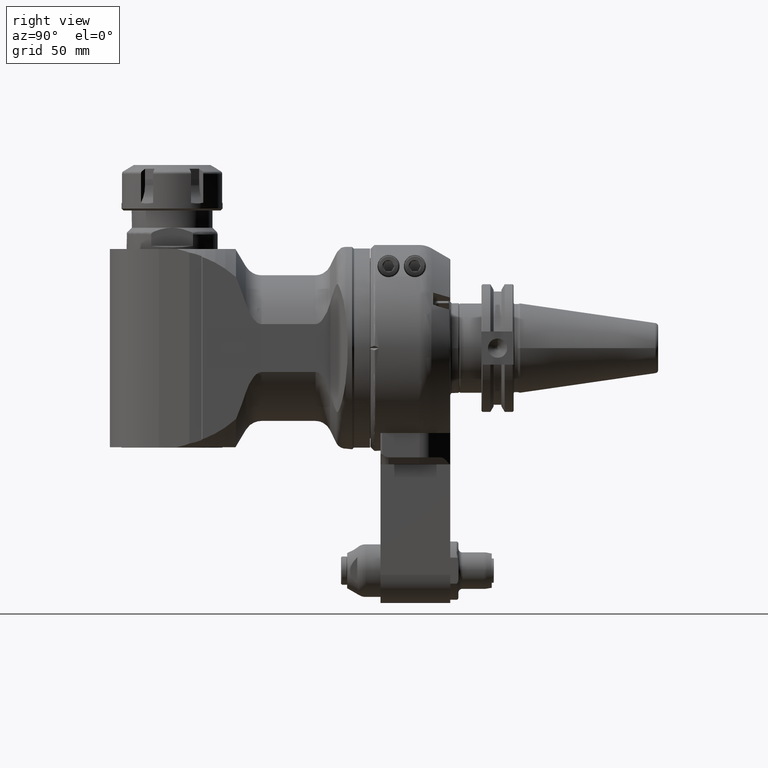
[diagram: clean part render]
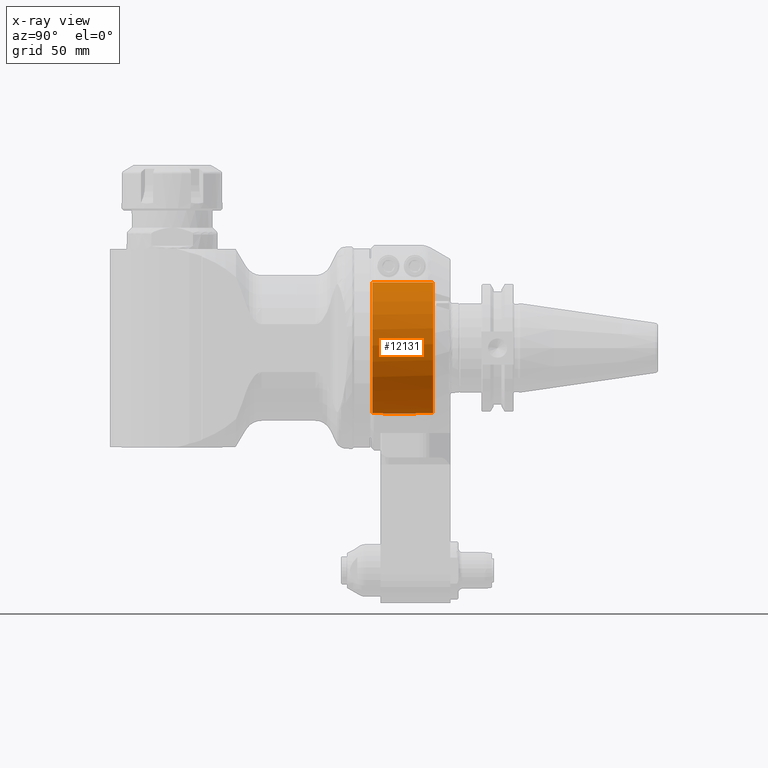
[diagram: x-ray — body ghosted, one internal face saturated and labeled with its STEP entity id]
A machine part, right view, then the same camera in x-ray: the body is ghosted and one INTERNAL B-rep face — a face not visible from any outside direction — is saturated and labeled: STEP entity #12131.
In plain terms, the highlighted cylindrical surface (partial cylindrical patch) has radius 32.5 mm, axis along (0, -1, 0).
Its self-contained STEP definition (entity closure, byte-faithful):
#1218=LINE('',#25432,#2106);
#1219=LINE('',#25435,#2107);
#1220=LINE('',#25439,#2108);
#1221=LINE('',#25443,#2109);
#2106=VECTOR('',#15419,8.5);
#2107=VECTOR('',#15422,8.5);
#2108=VECTOR('',#15425,30.);
#2109=VECTOR('',#15428,29.99999999998);
#2579=CYLINDRICAL_SURFACE('',#13107,32.5);
#2969=FACE_OUTER_BOUND('',#3683,.T.);
#3683=EDGE_LOOP('',(#9747,#9748,#9749,#9750,#9751,#9752,#9753,#9754));
#4330=CIRCLE('',#13058,32.5);
#4352=CIRCLE('',#13108,32.5);
#4353=CIRCLE('',#13109,32.5);
#4354=CIRCLE('',#13110,32.5);
#5383=VERTEX_POINT('',#24582);
#5384=VERTEX_POINT('',#24584);
#5422=VERTEX_POINT('',#25430);
#5423=VERTEX_POINT('',#25434);
#5424=VERTEX_POINT('',#25436);
#5425=VERTEX_POINT('',#25438);
#5426=VERTEX_POINT('',#25440);
#5427=VERTEX_POINT('',#25442);
#6891=EDGE_CURVE('',#5384,#5383,#4330,.T.);
#6961=EDGE_CURVE('',#5383,#5422,#1218,.T.);
#6962=EDGE_CURVE('',#5384,#5423,#1219,.T.);
#6963=EDGE_CURVE('',#5424,#5422,#4352,.T.);
#6964=EDGE_CURVE('',#5424,#5425,#1220,.T.);
#6965=EDGE_CURVE('',#5426,#5425,#4353,.T.);
#6966=EDGE_CURVE('',#5426,#5427,#1221,.T.);
#6967=EDGE_CURVE('',#5423,#5427,#4354,.T.);
#9747=ORIENTED_EDGE('',*,*,#6962,.F.);
#9748=ORIENTED_EDGE('',*,*,#6891,.T.);
#9749=ORIENTED_EDGE('',*,*,#6961,.T.);
#9750=ORIENTED_EDGE('',*,*,#6963,.F.);
#9751=ORIENTED_EDGE('',*,*,#6964,.T.);
#9752=ORIENTED_EDGE('',*,*,#6965,.F.);
#9753=ORIENTED_EDGE('',*,*,#6966,.T.);
#9754=ORIENTED_EDGE('',*,*,#6967,.F.);
#12131=ADVANCED_FACE('',(#2969),#2579,.F.);
#13058=AXIS2_PLACEMENT_3D('',#24585,#15288,#15289);
#13107=AXIS2_PLACEMENT_3D('',#25433,#15420,#15421);
#13108=AXIS2_PLACEMENT_3D('',#25437,#15423,#15424);
#13109=AXIS2_PLACEMENT_3D('',#25441,#15426,#15427);
#13110=AXIS2_PLACEMENT_3D('',#25444,#15429,#15430);
#15288=DIRECTION('center_axis',(0.,1.,0.));
#15289=DIRECTION('ref_axis',(0.164179104477598,0.,-0.986430545782588));
#15419=DIRECTION('',(0.,1.,0.));
#15420=DIRECTION('center_axis',(0.,-1.,0.));
#15421=DIRECTION('ref_axis',(1.38678298153134E-13,0.,-1.));
#15422=DIRECTION('',(0.,1.,0.));
#15423=DIRECTION('center_axis',(0.,-1.,0.));
#15424=DIRECTION('ref_axis',(-0.0461538461538519,0.,0.998934343430642));
#15425=DIRECTION('',(0.,-1.,0.));
#15426=DIRECTION('center_axis',(0.,1.,0.));
#15427=DIRECTION('ref_axis',(0.,0.,-1.));
#15428=DIRECTION('',(3.148370453234E-13,1.,-1.421085471521E-14));
#15429=DIRECTION('center_axis',(0.,-1.,0.));
#15430=DIRECTION('ref_axis',(0.164179104477598,0.,-0.986430545782588));
#24582=CARTESIAN_POINT('',(-5.335820895522,22.5,-32.05899273793));
#24584=CARTESIAN_POINT('',(5.335820895522,22.5,-32.05899273793));
#24585=CARTESIAN_POINT('Origin',(0.,22.5,0.));
#25430=CARTESIAN_POINT('',(-5.335820895522,31.,-32.05899273793));
#25432=CARTESIAN_POINT('',(-5.335820895522,22.5,-32.05899273793));
#25433=CARTESIAN_POINT('Origin',(0.,16.5,0.));
#25434=CARTESIAN_POINT('',(5.335820895522,31.,-32.05899273793));
#25435=CARTESIAN_POINT('',(5.335820895522,22.5,-32.05899273793));
#25436=CARTESIAN_POINT('',(-1.5,31.,32.4653661615));
#25437=CARTESIAN_POINT('Origin',(0.,31.,0.));
#25438=CARTESIAN_POINT('',(-1.5,1.,32.4653661615));
#25439=CARTESIAN_POINT('',(-1.5,31.,32.4653661615));
#25440=CARTESIAN_POINT('',(1.499999999991,1.000000000023,32.4653661615));
#25441=CARTESIAN_POINT('Origin',(0.,0.9999999999999,0.));
#25442=CARTESIAN_POINT('',(1.5,31.,32.4653661615));
#25443=CARTESIAN_POINT('',(1.499999999991,1.000000000023,32.4653661615));
#25444=CARTESIAN_POINT('Origin',(0.,31.,0.));